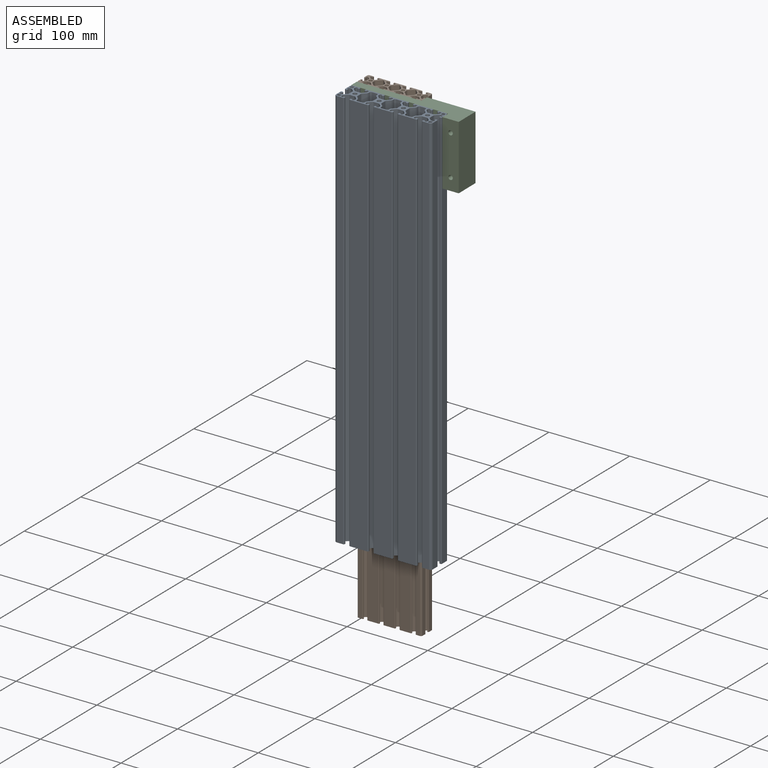
[diagram: assembled view]
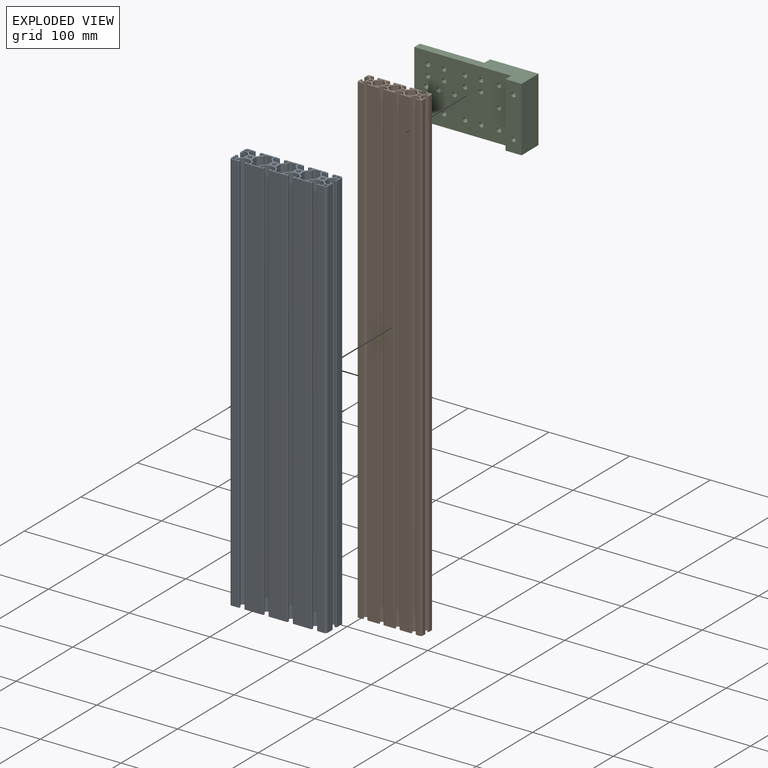
[diagram: exploded view]
GUIDED TOUR — MATED ASSEMBLY (Onshape document 36c7da5c9b2d74a5e74c0c76, AutoMate assembly 36c7da5c9b2d74a5e74c0c76_3cfc71020c3222aac0a5a544_5b13859bf4a17e0771e3cad5_default)

This assembly has 3 components, labeled P0..P2 below (a component is one placed occurrence of a part; the same part can appear more than once), held together by 2 mates. A mate is a constraint between two components; its type names the relative motion it leaves free:
  FASTENED — locks the two components together rigidly (no relative motion).
Axis/direction vectors are unit vectors and 'through' points are millimeter coordinates, both in the assembly's world frame.

MATES
  1. FASTENED "Fest 1": P2 <-> P0, direction (0.000, -1.000, 0.000) through (-33.08, -102.33, 102.65) mm
  2. FASTENED "Fest 2": P1 <-> P2, direction (0.000, -1.000, 0.000) through (-53.14, -92.33, 102.65) mm

ASSEMBLY ORDER
  1. P1 — the base component [order verified]
  2. P2 [order verified]
  3. P0 [order verified]
Order-tag legend:
  [order verified] — this step's position reverses a verified removal order: the component was checked to insert without passing through the ones already placed.

Of the 3 components, 1 carries the full construction recipe — the FeatureScript program that regenerates the part's solid from scratch; the rest are supplied as boundary geometry only.
Each toured component is shown spotlighted twice — in the assembled view, then in the exploded view, where a leader line traces a displaced component back to its assembled socket (saturated green if recipe-attached, orange if geometry-only; every other component desaturated gray) — followed by its recipe or geometry summary and the mates that hold it.
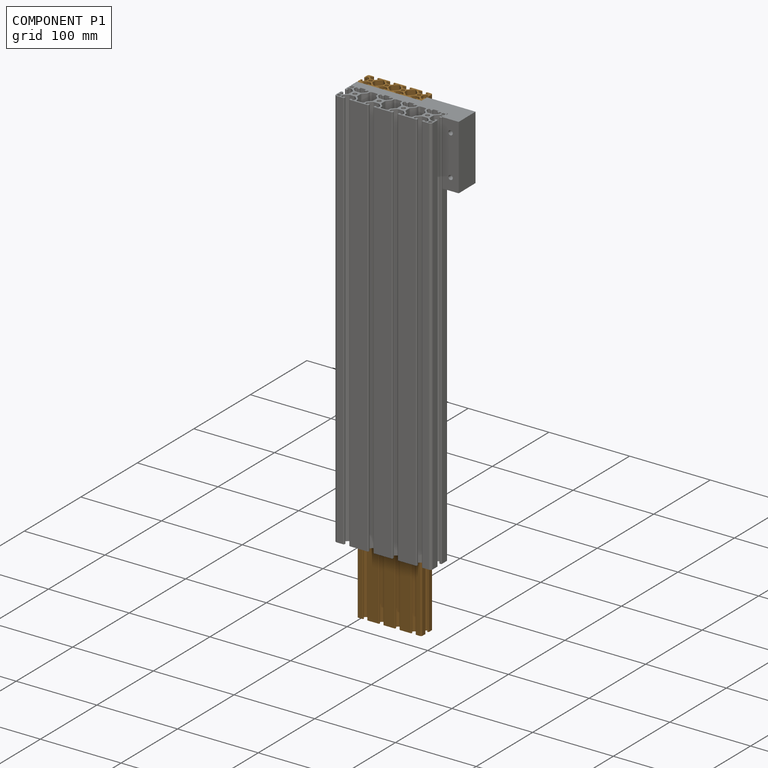
[diagram: component P1 — assembled]
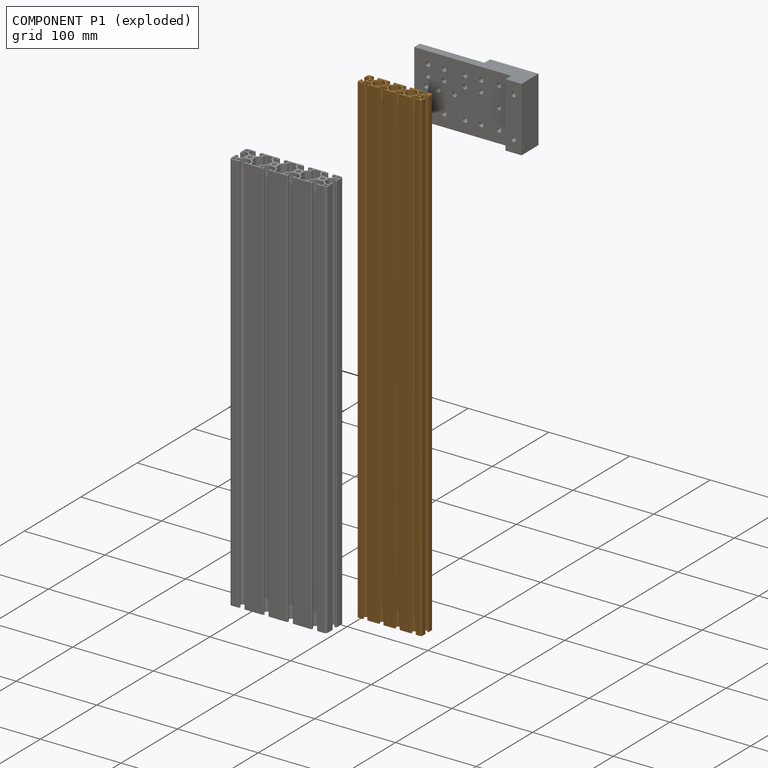
[diagram: component P1 — exploded]
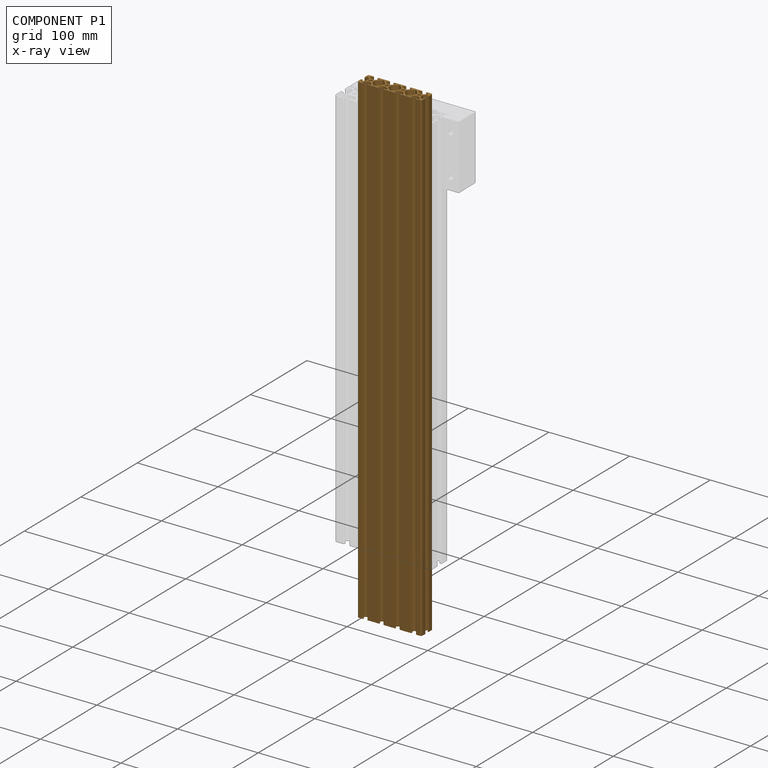
[diagram: component P1 — x-ray view]
COMPONENT P1 — geometry summary (no construction recipe available for this part):
  bounding box: 600.0 x 80.0 x 20.0 mm
  B-rep topology: 1 solid, 210 faces, 1248 edges
  volume: 376436 mm^3 (39% of its bounding box)
  symmetry: 2-fold rotationally symmetric about the x axis; 2-fold rotationally symmetric about the y axis; 2-fold rotationally symmetric about the z axis; mirror-symmetric across its x mid-plane, y mid-plane, z mid-plane
Held by: FASTENED mate "Fest 2" to P2.
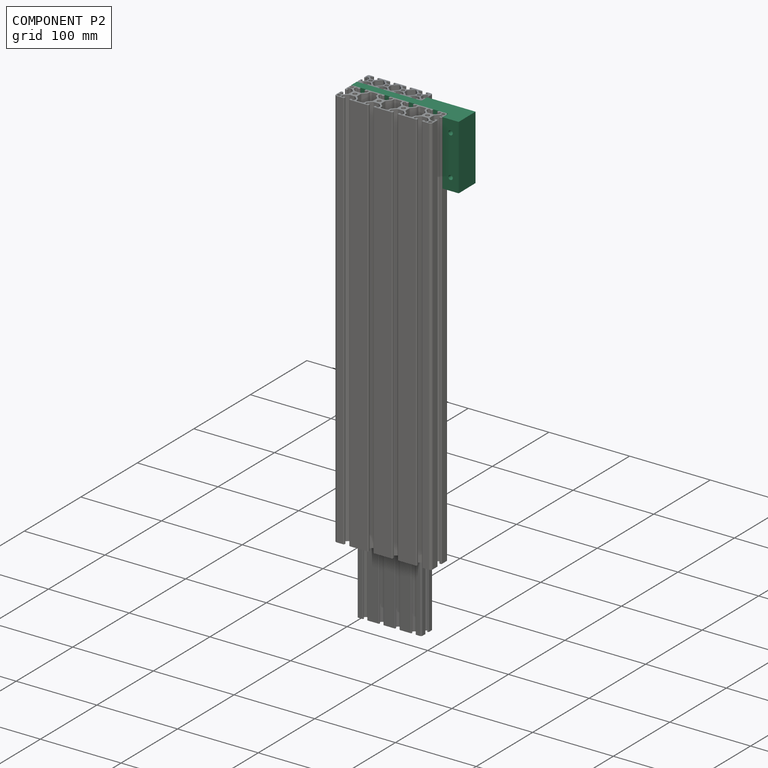
[diagram: component P2 — assembled]
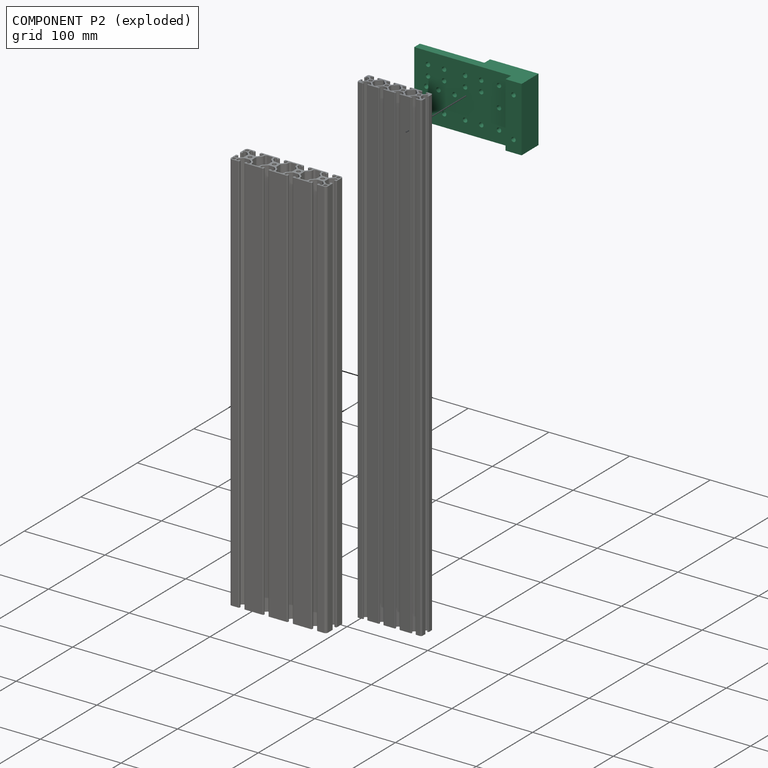
[diagram: component P2 — exploded]
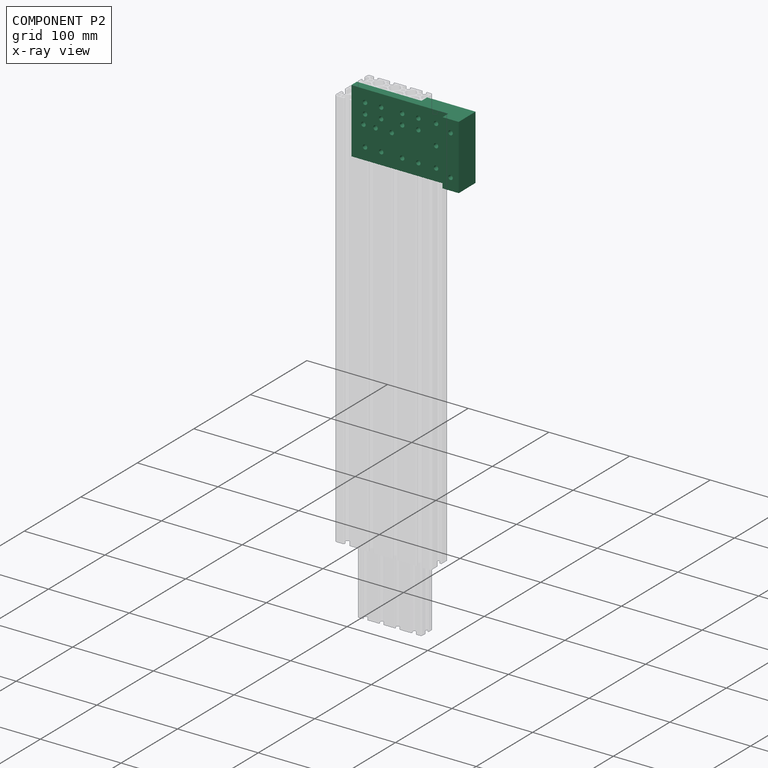
[diagram: component P2 — x-ray view]
COMPONENT P2 — recipe-attached (CADFS 00936531, mesh-verified: the recipe's output STEP matches this component's geometry to below the mesh-comparison resolution (tessellation chordal tolerance ~0.246 mm)).
Held by: FASTENED mate "Fest 1" to P0; FASTENED mate "Fest 2" to P1.
Construction recipe (FeatureScript — the CAD program that rebuilds this solid; sketch coordinates are in the units given by the * unit suffixes, e.g. mm):

FeatureScript 2491;
import(path : "onshape/std/geometry.fs", version : "2491.0");
import(path : "onshape/std/common.fs", version : "2491.0");
const mm = millimeter;
const VERTEX = EntityType.VERTEX;
const EDGE = EntityType.EDGE;
const FACE = EntityType.FACE;
const BODY = EntityType.BODY;
function v(x, y){return vector(x, y);}
function OD(order){return orderDisambiguation(order);}
function OSD(set){return originalSetDisambiguation(set);}
function TD(topology){return topologyDisambiguation(topology);}
function TDD(query){return trueDependencyDisambiguation(query);}
function sQuery(a, b, c) {return sketchEntityQuery(a, b, c);}

annotation { "Feature Type Name" : "Feature", "Feature Type Description" : "" }
export const myFeature = defineFeature(function(context is Context, id is Id, definition is map)
    precondition{}
    {
        {
            var Q0;
            Q0=qCreatedBy(makeId("Top.planeOp"),FACE);
            var sketch = newSketch(context, id + "F0", { "sketchPlane" : qUnion([Q0])});
            skLineSegment(sketch, "E0.bottom", {"start": v(40, 70) * mm, "end": v(-40, 70) * mm});
            skLineSegment(sketch, "E0.top", {"start": v(40, -70) * mm, "end": v(-40, -70) * mm});
            skLineSegment(sketch, "E0.left", {"start": v(40, 70) * mm, "end": v(40, -70) * mm});
            skLineSegment(sketch, "E0.right", {"start": v(-40, 70) * mm, "end": v(-40, -70) * mm});
            skPoint(sketch, "E0.middle", {"position": v(0, 0) * mm});
            skLineSegment(sketch, "E1", {"start": v(-40, 30) * mm, "end": v(40, 30) * mm, "construction": true});
            skLineSegment(sketch, "E2", {"start": v(-40, 10) * mm, "end": v(40, 10) * mm, "construction": true});
            skPoint(sketch, "E3", {"position": v(-25, 53) * mm});
            skPoint(sketch, "E4", {"position": v(-12, 53) * mm});
            skPoint(sketch, "E5", {"position": v(25, 53) * mm});
            skPoint(sketch, "E6.MirrorP", {"position": v(-25, 7) * mm});
            skPoint(sketch, "E7.MirrorP", {"position": v(-12, 7) * mm});
            skPoint(sketch, "E8.MirrorP", {"position": v(25, 7) * mm});
            skPoint(sketch, "E9", {"position": v(-25, 33) * mm});
            skPoint(sketch, "E10", {"position": v(-12, 33) * mm});
            skPoint(sketch, "E11", {"position": v(25, 33) * mm});
            skPoint(sketch, "E12.MirrorP", {"position": v(-25, -13) * mm});
            skPoint(sketch, "E13.MirrorP", {"position": v(-12, -13) * mm});
            skPoint(sketch, "E14.MirrorP", {"position": v(25, -13) * mm});
            skPoint(sketch, "E15", {"position": v(0, -35) * mm});
            skPoint(sketch, "E16.MirrorP", {"position": v(0, 55) * mm});
            skPoint(sketch, "E17", {"position": v(0, 40) * mm});
            skPoint(sketch, "E18.MirrorP", {"position": v(0, 20) * mm});
            skSolve(sketch);
        }
        {
            var Q0;
            Q0 = qSketchRegion(id + "F0", true);
            extrude(context, id + "F1", {"entities" : qUnion([Q0]), "depth" : 10 * mm, "offsetDistance" : 25 * mm});
        }
        {
            var Q0;
            Q0=sQuery(id+"F0.wireOp",VERTEX,"E8.MirrorP");
            var Q1;
            Q1=sQuery(id+"F0.wireOp",VERTEX,"E14.MirrorP");
            var Q2;
            Q2=sQuery(id+"F0.wireOp",VERTEX,"E11");
            var Q3;
            Q3=sQuery(id+"F0.wireOp",VERTEX,"E5");
            var Q4;
            Q4=sQuery(id+"F0.wireOp",VERTEX,"E4");
            var Q5;
            Q5=sQuery(id+"F0.wireOp",VERTEX,"E10");
            var Q6;
            Q6=sQuery(id+"F0.wireOp",VERTEX,"E9");
            var Q7;
            Q7=sQuery(id+"F0.wireOp",VERTEX,"E3");
            var Q8;
            Q8=sQuery(id+"F0.wireOp",VERTEX,"E7.MirrorP");
            var Q9;
            Q9=sQuery(id+"F0.wireOp",VERTEX,"E6.MirrorP");
            var Q10;
            Q10=sQuery(id+"F0.wireOp",VERTEX,"E13.MirrorP");
            var Q11;
            Q11=sQuery(id+"F0.wireOp",VERTEX,"E12.MirrorP");
            var Q12;
            Q12=makeQuery(id+"F1.opExtrude","SWEPT_BODY",BODY,{"disambiguationData":[OSD([sQuery(id+"F0.wireOp",EDGE,"E0.bottom"),sQuery(id+"F0.wireOp",EDGE,"E0.top"),sQuery(id+"F0.wireOp",EDGE,"E0.left"),sQuery(id+"F0.wireOp",EDGE,"E0.right")])]});
            hole(context, id + "F2", {"style" : HoleStyle.SIMPLE, "endStyle" : HoleEndStyle.THROUGH, "oppositeDirection" : true, "standardTappedOrClearance" : lookupTablePath({ "fit" : "Normal", "standard" : "ISO", "size" : "M5", "type" : "Clearance" }), "standardBlindInLast" : lookupTablePath({ "fit" : "Normal", "standard" : "ISO", "engagement" : "75%", "pitch" : "0.8 mm", "size" : "M5", "type" : "Clearance & tapped" }), "holeDiameter" : 5.5 * mm, "majorDiameter" : 5 * mm, "tappedDepth" : 12 * mm, "tapClearance" : 3, "locations" : qUnion([Q0, Q1, Q2, Q3, Q4, Q5, Q6, Q7, Q8, Q9, Q10, Q11]), "scope" : qUnion([Q12]), "startStyle" : HoleStartStyle.PART});
        }
        {
            var Q0;
            Q0=sQuery(id+"F0.wireOp",VERTEX,"E17");
            var Q1;
            Q1=sQuery(id+"F0.wireOp",VERTEX,"E16.MirrorP");
            var Q2;
            Q2=sQuery(id+"F0.wireOp",VERTEX,"E15");
            var Q3;
            Q3=sQuery(id+"F0.wireOp",VERTEX,"E18.MirrorP");
            var Q4;
            Q4=makeQuery(id+"F1.opExtrude","SWEPT_BODY",BODY,{"disambiguationData":[OSD([sQuery(id+"F0.wireOp",EDGE,"E0.bottom"),sQuery(id+"F0.wireOp",EDGE,"E0.top"),sQuery(id+"F0.wireOp",EDGE,"E0.left"),sQuery(id+"F0.wireOp",EDGE,"E0.right")])]});
            hole(context, id + "F3", {"style" : HoleStyle.SIMPLE, "endStyle" : HoleEndStyle.THROUGH, "oppositeDirection" : true, "standardTappedOrClearance" : lookupTablePath({ "fit" : "Normal", "standard" : "ISO", "size" : "M5", "type" : "Clearance" }), "standardBlindInLast" : lookupTablePath({ "fit" : "Normal", "standard" : "ISO", "engagement" : "75%", "pitch" : "0.8 mm", "size" : "M5", "type" : "Clearance & tapped" }), "holeDiameter" : 5.5 * mm, "majorDiameter" : 5 * mm, "tappedDepth" : 12 * mm, "tapClearance" : 3, "locations" : qUnion([Q0, Q1, Q2, Q3]), "scope" : qUnion([Q4]), "startStyle" : HoleStartStyle.PART});
        }
        {
            var Q0;
            Q0=makeQuery(id+"F0.imprint","IMPRINT",FACE,{"disambiguationData":[TD([[makeQuery(id+"F0.imprint","IMPRINT",EDGE,{"derivedFrom":sQuery(id+"F0.wireOp",EDGE,"E0.bottom")}),1.0]])]});
            var sketch = newSketch(context, id + "F4", { "sketchPlane" : qUnion([Q0])});
            skLineSegment(sketch, "E19.bottom", {"start": v(40, -70.13) * mm, "end": v(-40, -70.13) * mm});
            skLineSegment(sketch, "E19.top", {"start": v(40, -50.13) * mm, "end": v(-40, -50.13) * mm});
            skLineSegment(sketch, "E19.left", {"start": v(40, -70.13) * mm, "end": v(40, -50.13) * mm});
            skLineSegment(sketch, "E19.right", {"start": v(-40, -70.13) * mm, "end": v(-40, -50.13) * mm});
            skPoint(sketch, "E19.middle", {"position": v(0, -60.13) * mm});
            skSolve(sketch);
        }
        {
            var Q0;
            Q0 = qSketchRegion(id + "F4", true);
            extrude(context, id + "F5", {"entities" : qUnion([Q0]), "operationType" : NewBodyOperationType.ADD, "oppositeDirection" : true, "depth" : 10 * mm, "offsetDistance" : 25 * mm});
        }
        {
            var Q0;
            Q0=makeQuery(id+"F1.opExtrude","CAP_FACE",FACE,{"disambiguationData":[OSD([sQuery(id+"F0.wireOp",EDGE,"E0.bottom"),sQuery(id+"F0.wireOp",EDGE,"E0.top"),sQuery(id+"F0.wireOp",EDGE,"E0.left"),sQuery(id+"F0.wireOp",EDGE,"E0.right")])],"isStart":false});
            var sketch = newSketch(context, id + "F6", { "sketchPlane" : qUnion([Q0])});
            skLineSegment(sketch, "E20.bottom", {"start": v(40, -70) * mm, "end": v(-40, -70) * mm});
            skLineSegment(sketch, "E20.top", {"start": v(40, -10) * mm, "end": v(-40, -10) * mm});
            skLineSegment(sketch, "E20.left", {"start": v(40, -70) * mm, "end": v(40, -10) * mm});
            skLineSegment(sketch, "E20.right", {"start": v(-40, -70) * mm, "end": v(-40, -10) * mm});
            skPoint(sketch, "E20.middle", {"position": v(0, -40) * mm});
            skSolve(sketch);
        }
        {
            var Q0;
            Q0 = qSketchRegion(id + "F6", true);
            extrude(context, id + "F7", {"entities" : qUnion([Q0]), "operationType" : NewBodyOperationType.ADD, "depth" : 10 * mm, "offsetDistance" : 25 * mm});
        }
        {
            var Q0;
            Q0=makeQuery(id+"F7.opExtrude","CAP_FACE",FACE,{"disambiguationData":[OSD([sQuery(id+"F6.wireOp",EDGE,"E20.bottom"),sQuery(id+"F6.wireOp",EDGE,"E20.top"),sQuery(id+"F6.wireOp",EDGE,"E20.left"),sQuery(id+"F6.wireOp",EDGE,"E20.right")])],"isStart":false});
            var sketch = newSketch(context, id + "F8", { "sketchPlane" : qUnion([Q0])});
            skPoint(sketch, "E21", {"position": v(-25, -35) * mm});
            skPoint(sketch, "E22.MirrorP", {"position": v(25, -35) * mm});
            skPoint(sketch, "E23", {"position": v(-25, -60) * mm});
            skPoint(sketch, "E24.MirrorP", {"position": v(25, -60) * mm});
            skSolve(sketch);
        }
        {
            var Q0;
            Q0=sQuery(id+"F8.wireOp",VERTEX,"E21");
            var Q1;
            Q1=sQuery(id+"F8.wireOp",VERTEX,"E22.MirrorP");
            var Q2;
            Q2=sQuery(id+"F8.wireOp",VERTEX,"E23");
            var Q3;
            Q3=sQuery(id+"F8.wireOp",VERTEX,"E24.MirrorP");
            var Q4;
            Q4=makeQuery(id+"F1.opExtrude","SWEPT_BODY",BODY,{"disambiguationData":[OSD([sQuery(id+"F0.wireOp",EDGE,"E0.bottom"),sQuery(id+"F0.wireOp",EDGE,"E0.top"),sQuery(id+"F0.wireOp",EDGE,"E0.left"),sQuery(id+"F0.wireOp",EDGE,"E0.right")])]});
            hole(context, id + "F9", {"style" : HoleStyle.SIMPLE, "endStyle" : HoleEndStyle.THROUGH, "standardTappedOrClearance" : lookupTablePath({ "fit" : "Normal", "standard" : "ISO", "size" : "M5", "type" : "Clearance" }), "standardBlindInLast" : lookupTablePath({ "fit" : "Normal", "standard" : "ISO", "engagement" : "75%", "pitch" : "0.8 mm", "size" : "M5", "type" : "Clearance & tapped" }), "holeDiameter" : 5.5 * mm, "majorDiameter" : 5 * mm, "tappedDepth" : 12 * mm, "tapClearance" : 3, "locations" : qUnion([Q0, Q1, Q2, Q3]), "scope" : qUnion([Q4]), "startStyle" : HoleStartStyle.PART});
        }
    });
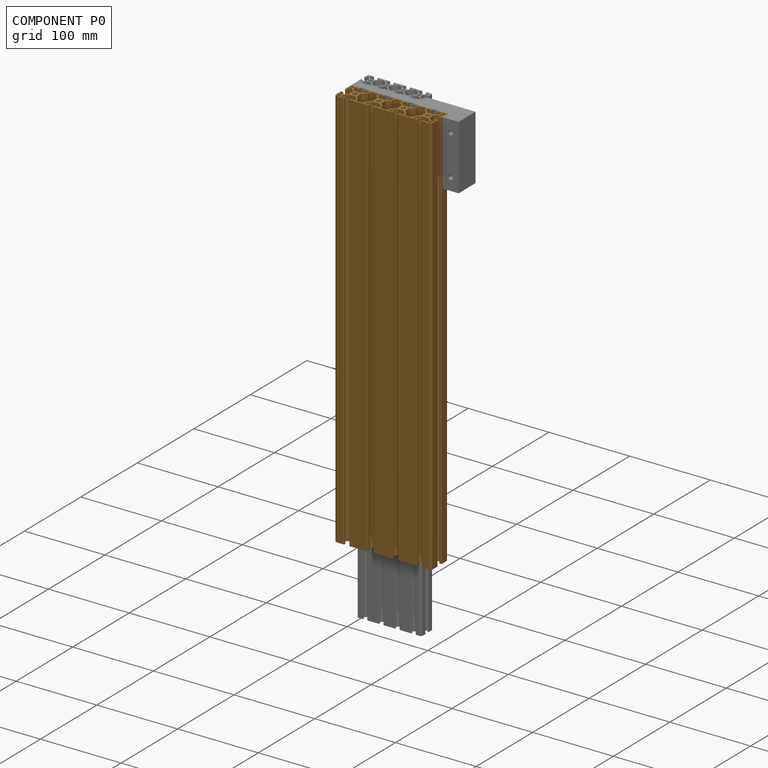
[diagram: component P0 — assembled]
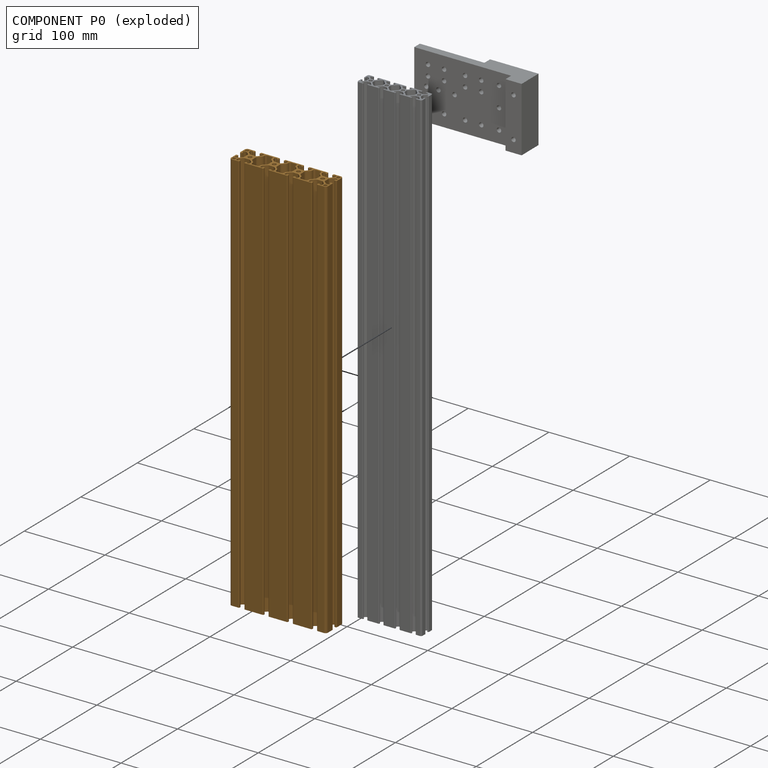
[diagram: component P0 — exploded]
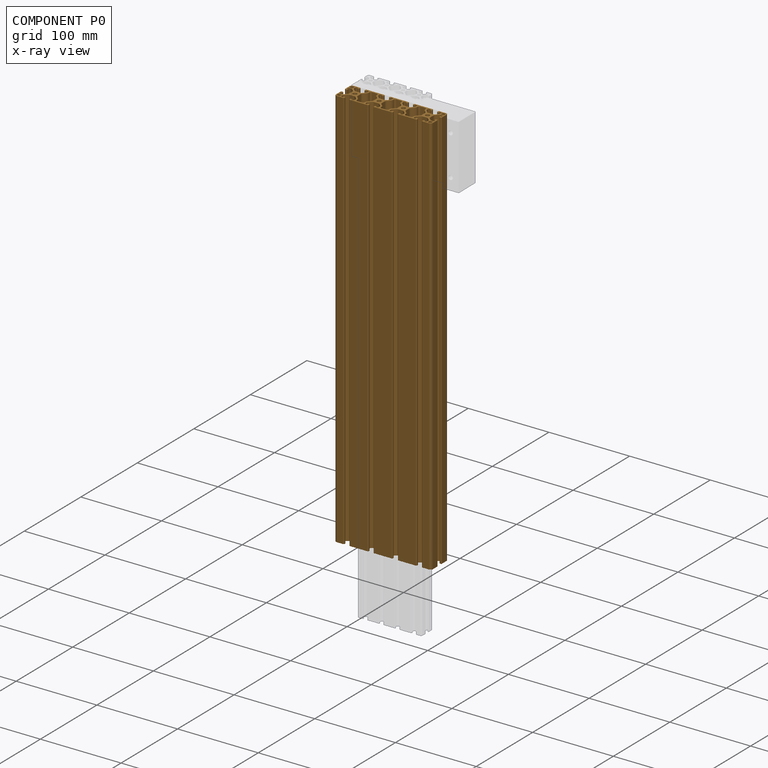
[diagram: component P0 — x-ray view]
COMPONENT P0 — geometry summary (no construction recipe available for this part):
  bounding box: 500.0 x 120.0 x 30.0 mm
  B-rep topology: 1 solid, 398 faces, 2376 edges
  volume: 582473 mm^3 (32% of its bounding box)
  symmetry: 2-fold rotationally symmetric about the x axis; 2-fold rotationally symmetric about the y axis; 2-fold rotationally symmetric about the z axis; mirror-symmetric across its x mid-plane, y mid-plane, z mid-plane
Held by: FASTENED mate "Fest 1" to P2.
PROVENANCE & LICENSES
Assembly (occurrences, transforms, mates, per-part STEP geometry): AutoMate dataset, Zenodo record 7776208, CC0.
Construction recipes: CADFS (HuggingFace VladPyatov/CADFS, CC-BY-4.0, layered over the ABC dataset), FeatureScript reconstruction programs keyed by ABC model id.
Join: ABC meta listings map ABC model id -> Onshape documentId; within a shared document, parts are matched by geometric signature (bounding-box dims + volume at 0.1% relative tolerance, exact B-rep face/solid counts).
Verification: 1 of this assembly's 3 components carries a recipe attachment, and every attachment is mesh-verified: the CADFS STEP and the AutoMate member STEP were compared as meshes in their shared local frame (symmetric sampled-point-to-mesh distance); worst across the 1 attachment: below the mesh-comparison resolution (tessellation chordal tolerance ~0.246 mm) on a 164 mm part.
Renders: orthographic iso camera (az 35 / el 25); the floor grid conveys scale (grid pitch printed in each image; no ruler). In the exploded view each component is displaced by its stored offset vector: the offsets alone carry the explosion direction (mate normal/axis signs are not orientation cues and do not encode it), and separation distances are assigned per mate-chain, not proportionally to assembly-order depth.
